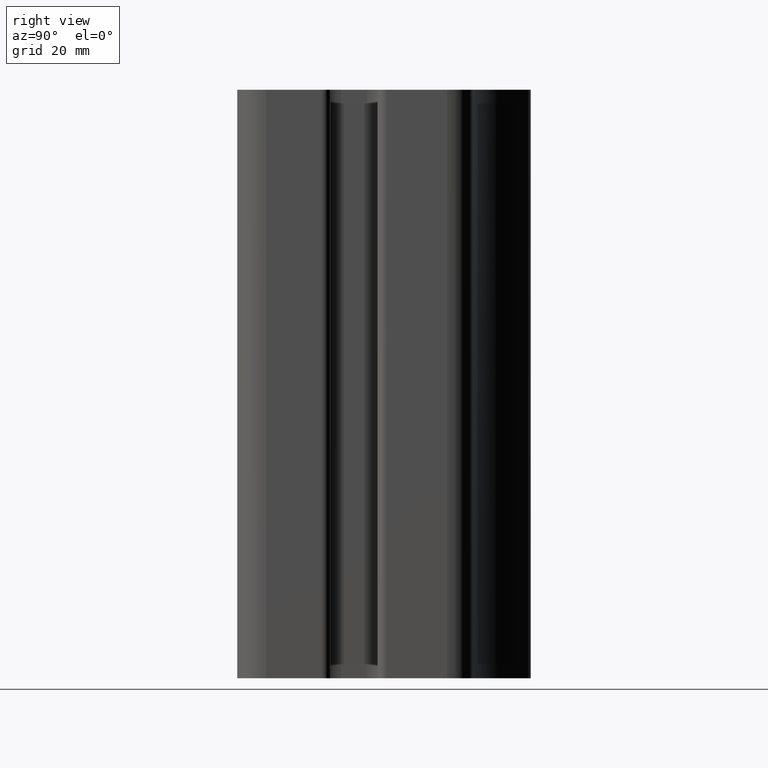
[diagram: clean part render]
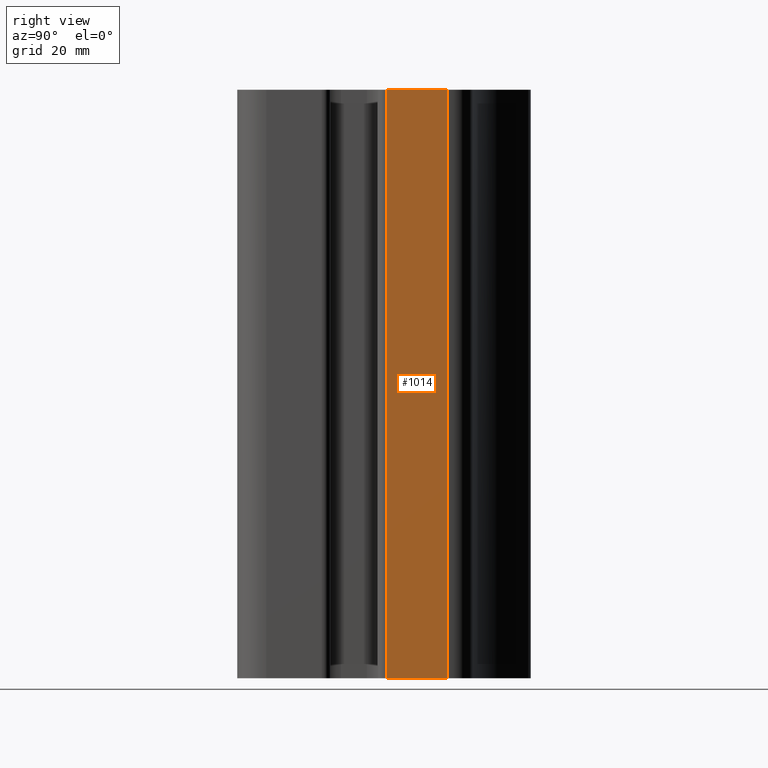
[diagram: same view with one face highlighted and labeled with its STEP entity id]
A machine part, right view. The second image highlights one B-rep face of the part: STEP entity #1014.
In plain terms, the highlighted planar face has unit normal (1, -0, 0).
Its self-contained STEP definition (entity closure, byte-faithful):
#35=PLANE('',#1119);
#76=FACE_OUTER_BOUND('',#129,.T.);
#129=EDGE_LOOP('',(#787,#788,#789,#790));
#215=LINE('',#1722,#293);
#216=LINE('',#1726,#294);
#217=LINE('',#1728,#295);
#218=LINE('',#1729,#296);
#293=VECTOR('',#1398,100.);
#294=VECTOR('',#1403,10.3185556507001);
#295=VECTOR('',#1404,100.);
#296=VECTOR('',#1405,10.3185556507001);
#457=VERTEX_POINT('',#1719);
#458=VERTEX_POINT('',#1721);
#459=VERTEX_POINT('',#1725);
#460=VERTEX_POINT('',#1727);
#596=EDGE_CURVE('',#457,#458,#215,.T.);
#598=EDGE_CURVE('',#457,#459,#216,.T.);
#599=EDGE_CURVE('',#459,#460,#217,.T.);
#600=EDGE_CURVE('',#458,#460,#218,.T.);
#787=ORIENTED_EDGE('',*,*,#598,.T.);
#788=ORIENTED_EDGE('',*,*,#599,.T.);
#789=ORIENTED_EDGE('',*,*,#600,.F.);
#790=ORIENTED_EDGE('',*,*,#596,.F.);
#1014=ADVANCED_FACE('',(#76),#35,.T.);
#1119=AXIS2_PLACEMENT_3D('',#1724,#1401,#1402);
#1398=DIRECTION('',(0.,0.,1.));
#1401=DIRECTION('center_axis',(0.999999999999989,-1.46202633E-7,0.));
#1402=DIRECTION('ref_axis',(0.,0.,-1.));
#1403=DIRECTION('',(1.46202632572398E-7,0.999999999999989,0.));
#1404=DIRECTION('',(0.,0.,1.));
#1405=DIRECTION('',(1.46202632572398E-7,0.999999999999989,0.));
#1719=CARTESIAN_POINT('',(22.9610060100322,0.932770162524662,0.));
#1721=CARTESIAN_POINT('',(22.9610060100322,0.932770162524662,100.));
#1722=CARTESIAN_POINT('',(22.9610060100322,0.932770162524662,0.));
#1724=CARTESIAN_POINT('Origin',(22.9610060100322,0.932770162524662,0.));
#1725=CARTESIAN_POINT('',(22.9610075186322,11.2513258132246,0.));
#1726=CARTESIAN_POINT('',(22.9610060100322,0.932770162524662,0.));
#1727=CARTESIAN_POINT('',(22.9610075186322,11.2513258132246,100.));
#1728=CARTESIAN_POINT('',(22.9610075186322,11.2513258132246,0.));
#1729=CARTESIAN_POINT('',(22.9610060100322,0.932770162524662,100.));